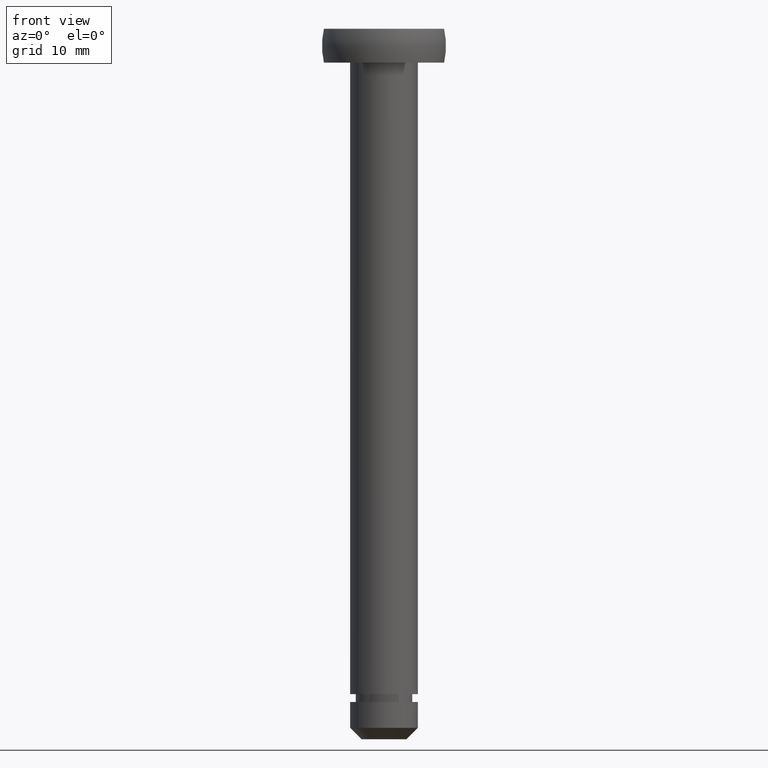
[diagram: clean part render]
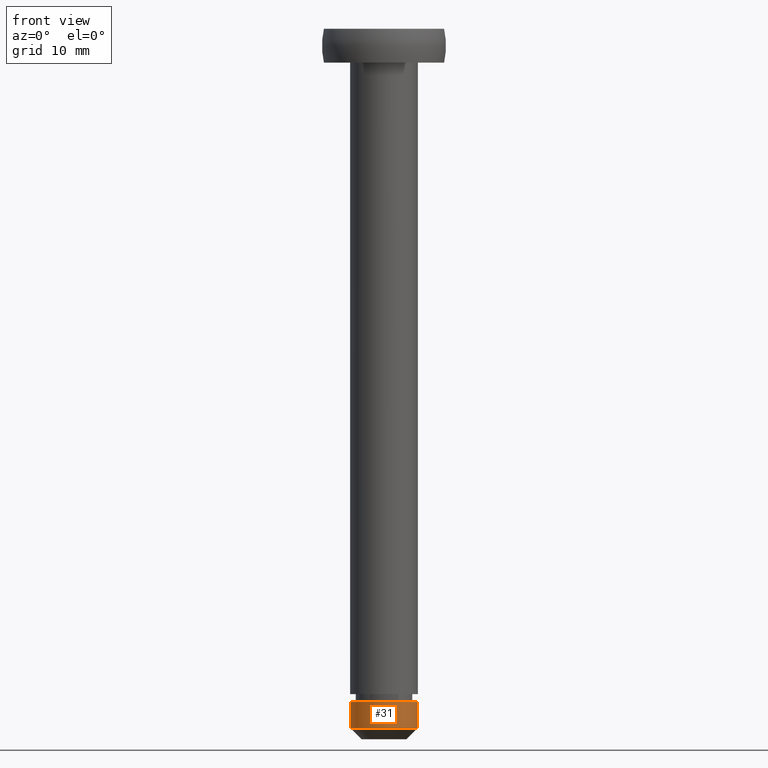
[diagram: same view with one face highlighted and labeled with its STEP entity id]
A machine part, front view. The second image highlights one B-rep face of the part: STEP entity #31.
In plain terms, the highlighted cylindrical surface (edge-blend (fillet) strip) has radius 3 mm, axis along (0, 0, -1).
Its self-contained STEP definition (entity closure, byte-faithful):
#22 = ORIENTED_EDGE ( 'NONE', *, *, #240, .T. ) ;
#31 = ADVANCED_FACE ( 'NONE', ( #459 ), #149, .T. ) ;
#43 = ORIENTED_EDGE ( 'NONE', *, *, #190, .F. ) ;
#45 = DIRECTION ( 'NONE',  ( -1.000000000000000000, 0.0000000000000000000, 0.0000000000000000000 ) ) ;
#50 = ORIENTED_EDGE ( 'NONE', *, *, #441, .T. ) ;
#75 = VECTOR ( 'NONE', #229, 1000.000000000000000 ) ;
#105 = AXIS2_PLACEMENT_3D ( 'NONE', #286, #143, #45 ) ;
#137 = AXIS2_PLACEMENT_3D ( 'NONE', #307, #467, #439 ) ;
#141 = CARTESIAN_POINT ( 'NONE',  ( 0.0000000000000000000, 0.0000000000000000000, -59.70000001804350400 ) ) ;
#143 = DIRECTION ( 'NONE',  ( 0.0000000000000000000, 0.0000000000000000000, -1.000000000000000000 ) ) ;
#149 = CYLINDRICAL_SURFACE ( 'NONE', #105, 2.999999999999998200 ) ;
#162 = VERTEX_POINT ( 'NONE', #450 ) ;
#178 = LINE ( 'NONE', #334, #392 ) ;
#190 = EDGE_CURVE ( 'NONE', #273, #208, #178, .T. ) ;
#191 = CARTESIAN_POINT ( 'NONE',  ( -3.000000000000000000, 0.0000000000000000000, -59.70000001804350400 ) ) ;
#205 = LINE ( 'NONE', #255, #75 ) ;
#208 = VERTEX_POINT ( 'NONE', #349 ) ;
#210 = CIRCLE ( 'NONE', #137, 2.999999999999996000 ) ;
#216 = VERTEX_POINT ( 'NONE', #191 ) ;
#229 = DIRECTION ( 'NONE',  ( 0.0000000000000000000, 0.0000000000000000000, -1.000000000000000000 ) ) ;
#240 = EDGE_CURVE ( 'NONE', #273, #216, #275, .T. ) ;
#255 = CARTESIAN_POINT ( 'NONE',  ( -2.999999999999998200, 0.0000000000000000000, -6.132507950209293800E-014 ) ) ;
#263 = DIRECTION ( 'NONE',  ( 0.0000000000000000000, 0.0000000000000000000, -1.000000000000000000 ) ) ;
#266 = DIRECTION ( 'NONE',  ( -1.000000000000000000, 0.0000000000000000000, 0.0000000000000000000 ) ) ;
#273 = VERTEX_POINT ( 'NONE', #415 ) ;
#275 = CIRCLE ( 'NONE', #428, 3.000000000000000000 ) ;
#286 = CARTESIAN_POINT ( 'NONE',  ( 0.0000000000000000000, 0.0000000000000000000, -6.132507950209293800E-014 ) ) ;
#303 = ORIENTED_EDGE ( 'NONE', *, *, #304, .F. ) ;
#304 = EDGE_CURVE ( 'NONE', #208, #162, #210, .T. ) ;
#305 = EDGE_LOOP ( 'NONE', ( #43, #22, #50, #303 ) ) ;
#307 = CARTESIAN_POINT ( 'NONE',  ( 0.0000000000000000000, 0.0000000000000000000, -62.00000001804349400 ) ) ;
#334 = CARTESIAN_POINT ( 'NONE',  ( 2.999999999999998200, 3.673940397442057900E-016, -6.132507950209293800E-014 ) ) ;
#349 = CARTESIAN_POINT ( 'NONE',  ( 2.999999999999996000, 0.0000000000000000000, -62.00000001804349400 ) ) ;
#368 = DIRECTION ( 'NONE',  ( 0.0000000000000000000, 0.0000000000000000000, -1.000000000000000000 ) ) ;
#392 = VECTOR ( 'NONE', #368, 1000.000000000000000 ) ;
#415 = CARTESIAN_POINT ( 'NONE',  ( 3.000000000000000400, 3.673940397442060400E-016, -59.70000001804350400 ) ) ;
#428 = AXIS2_PLACEMENT_3D ( 'NONE', #141, #263, #266 ) ;
#439 = DIRECTION ( 'NONE',  ( -1.000000000000000000, 0.0000000000000000000, 0.0000000000000000000 ) ) ;
#441 = EDGE_CURVE ( 'NONE', #216, #162, #205, .T. ) ;
#450 = CARTESIAN_POINT ( 'NONE',  ( -2.999999999999996000, 3.673940397442054400E-016, -62.00000001804349400 ) ) ;
#459 = FACE_OUTER_BOUND ( 'NONE', #305, .T. ) ;
#467 = DIRECTION ( 'NONE',  ( 0.0000000000000000000, 0.0000000000000000000, -1.000000000000000000 ) ) ;